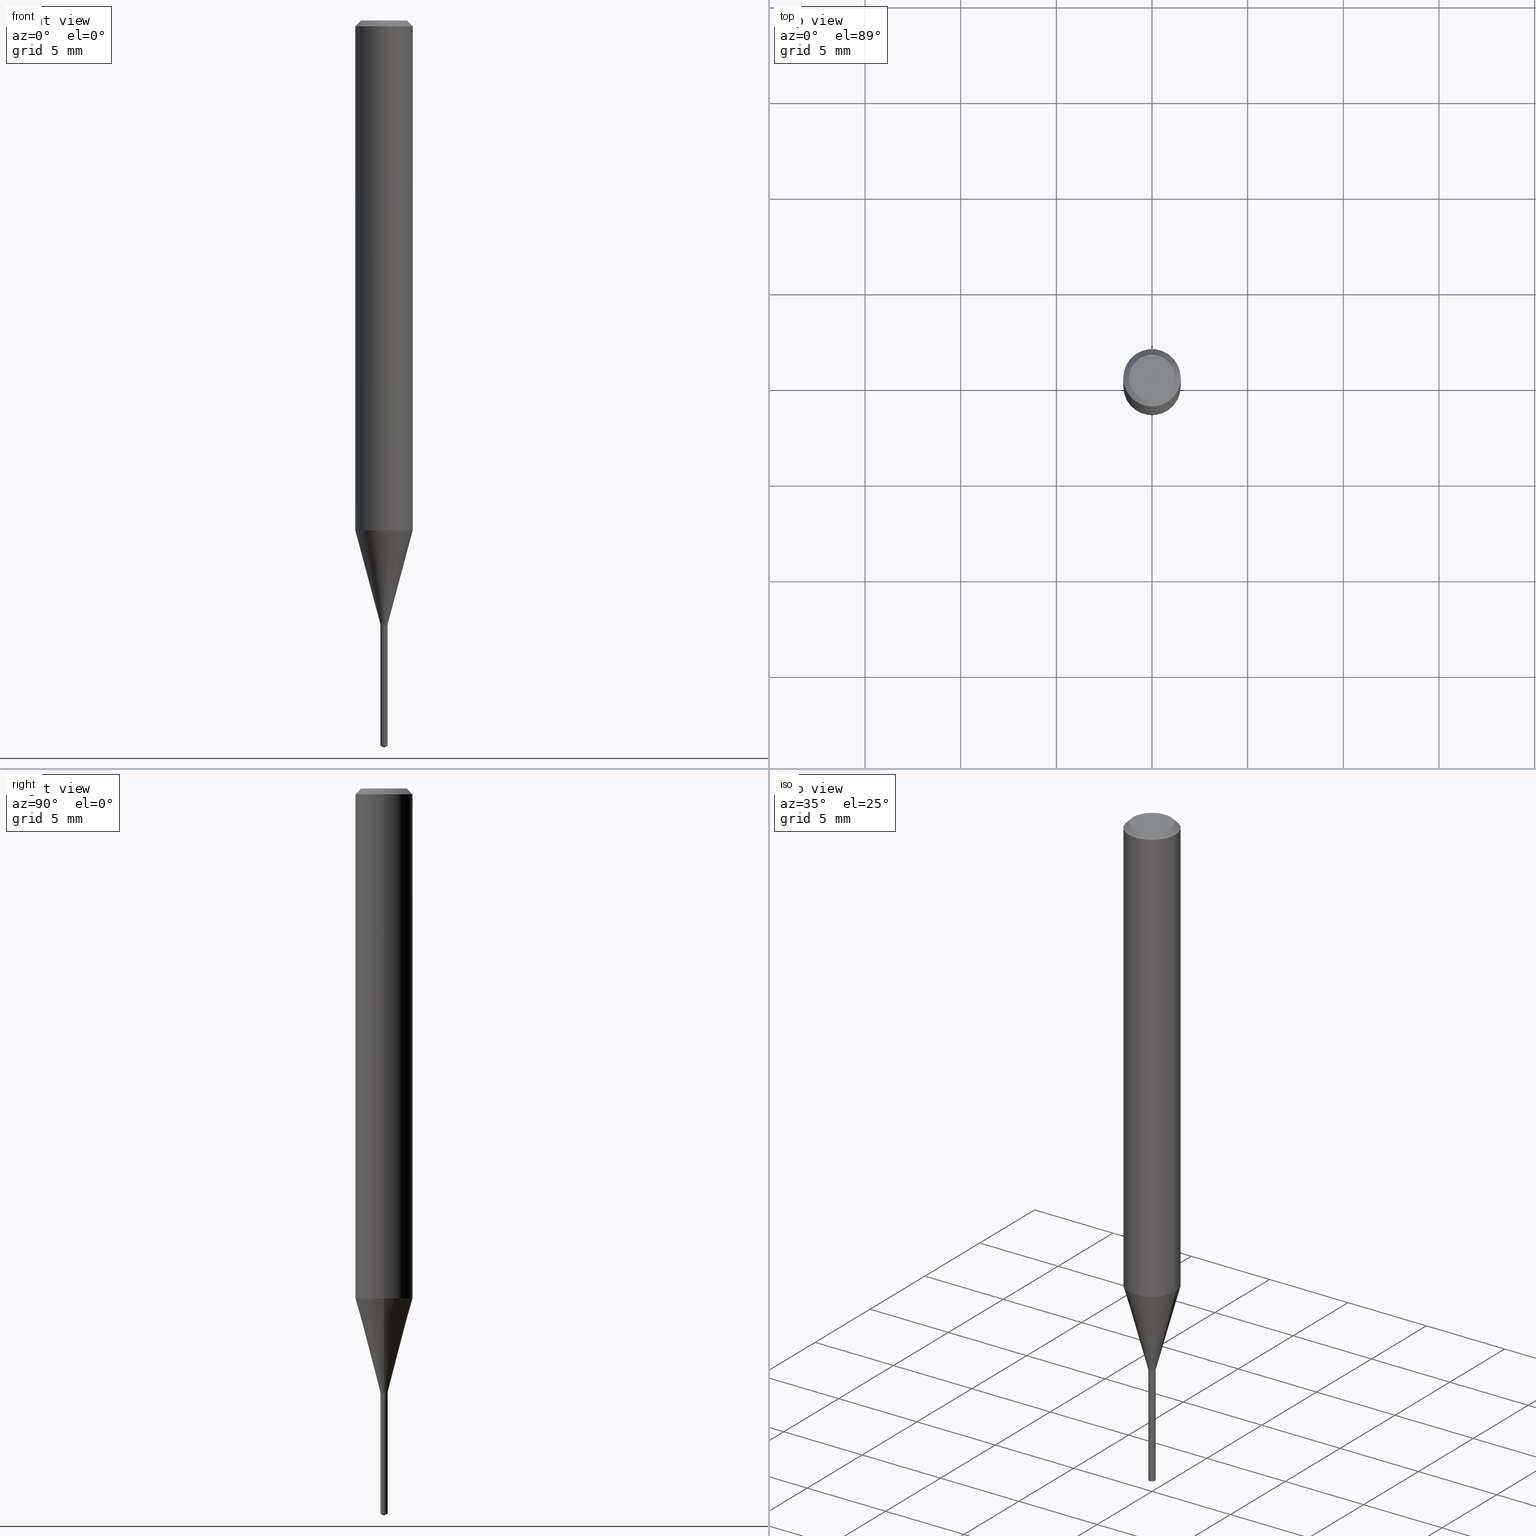
[diagram: canonical four-view strip — front | top / right | iso, engineering-drawing reading convention]
A machine part, canonical four-view strip (front | top / right | iso — engineering-drawing reading convention). The complete STEP part file that produces these views, byte-faithful:
ISO-10303-21;
HEADER;
FILE_DESCRIPTION (( 'STEP AP203' ),
    '1' );
FILE_NAME ('08262.STEP',
    '2024-04-24T13:59:29',
    ( '' ),
    ( '' ),
    'SwSTEP 2.0',
    'SolidWorks 2023',
    '' );
FILE_SCHEMA (( 'CONFIG_CONTROL_DESIGN' ));
ENDSEC;

DATA;
#1 = ORIENTED_EDGE ( 'NONE', *, *, #208, .F. ) ;
#2 = PRODUCT ( '08262', '08262', '', ( #271 ) ) ;
#3 = PERSON_AND_ORGANIZATION ( #377, #300 ) ;
#4 = DIRECTION ( 'NONE',  ( -6.982962677686265922E-15, -1.000000000000000000, 0.000000000000000000 ) ) ;
#5 = EDGE_CURVE ( 'NONE', #27, #399, #297, .T. ) ;
#6 = VECTOR ( 'NONE', #190, 39.37007874015748143 ) ;
#7 = FACE_OUTER_BOUND ( 'NONE', #485, .T. ) ;
#8 = EDGE_LOOP ( 'NONE', ( #393, #370, #74, #109 ) ) ;
#9 = ORIENTED_EDGE ( 'NONE', *, *, #227, .F. ) ;
#10 = VECTOR ( 'NONE', #112, 39.37007874015748854 ) ;
#11 = AXIS2_PLACEMENT_3D ( 'NONE', #403, #75, #29 ) ;
#12 = AXIS2_PLACEMENT_3D ( 'NONE', #416, #199, #120 ) ;
#13 = DIRECTION ( 'NONE',  ( 1.000000000000000000, -6.982962677686205968E-15, 0.000000000000000000 ) ) ;
#14 = PERSON_AND_ORGANIZATION ( #377, #300 ) ;
#15 = DIRECTION ( 'NONE',  ( -2.445468806185136877E-29, 3.491481338843145188E-15, 1.000000000000000000 ) ) ;
#16 = PERSON_AND_ORGANIZATION ( #377, #300 ) ;
#17 = FACE_OUTER_BOUND ( 'NONE', #183, .T. ) ;
#18 = VECTOR ( 'NONE', #239, 39.37007874015748854 ) ;
#19 = VECTOR ( 'NONE', #286, 39.37007874015748854 ) ;
#20 = CARTESIAN_POINT ( 'NONE',  ( -0.05904999999999999832, 3.711095515056362547E-16, -0.01181000000000007218 ) ) ;
#21 = AXIS2_PLACEMENT_3D ( 'NONE', #463, #228, #4 ) ;
#22 = EDGE_CURVE ( 'NONE', #312, #328, #224, .T. ) ;
#23 = CARTESIAN_POINT ( 'NONE',  ( 5.329070518204405225E-17, 0.007499999999995655975, -1.244099999999999984 ) ) ;
#24 = EDGE_LOOP ( 'NONE', ( #365, #136, #1, #324 ) ) ;
#25 = EDGE_CURVE ( 'NONE', #338, #178, #115, .T. ) ;
#26 = CARTESIAN_POINT ( 'NONE',  ( 3.041185007371835914E-29, -4.342006192985336437E-15, -1.243600000000000039 ) ) ;
#27 = VERTEX_POINT ( 'NONE', #152 ) ;
#28 = EDGE_CURVE ( 'NONE', #362, #47, #309, .T. ) ;
#29 = DIRECTION ( 'NONE',  ( 1.000000000000000000, -6.982962677686266711E-15, 4.876176775795935793E-29 ) ) ;
#30 = APPROVAL_PERSON_ORGANIZATION ( #279, #383, #129 ) ;
#31 = ORIENTED_EDGE ( 'NONE', *, *, #234, .T. ) ;
#32 = DIRECTION ( 'NONE',  ( -6.982962677686266711E-15, -1.000000000000000000, 3.520397390770520529E-15 ) ) ;
#33 = ORIENTED_EDGE ( 'NONE', *, *, #266, .T. ) ;
#34 = CARTESIAN_POINT ( 'NONE',  ( 3.042407741774928155E-29, -4.343751933654757151E-15, -1.244099999999999984 ) ) ;
#35 = CC_DESIGN_PERSON_AND_ORGANIZATION_ASSIGNMENT ( #282, #100, ( #164 ) ) ;
#36 = ORIENTED_EDGE ( 'NONE', *, *, #234, .F. ) ;
#37 = DIRECTION ( 'NONE',  ( -2.445468806185136597E-29, 3.491481338843145583E-15, 1.000000000000000000 ) ) ;
#38 = AXIS2_PLACEMENT_3D ( 'NONE', #296, #333, #106 ) ;
#39 = LOCAL_TIME ( 9, 59, 29.00000000000000000, #387 ) ;
#40 = ORIENTED_EDGE ( 'NONE', *, *, #237, .T. ) ;
#41 = DIRECTION ( 'NONE',  ( 1.000000000000000000, 0.000000000000000000, 0.000000000000000000 ) ) ;
#42 = DIRECTION ( 'NONE',  ( -2.445468806185136597E-29, 3.491481338843145583E-15, 1.000000000000000000 ) ) ;
#43 = APPROVAL ( #394, 'UNSPECIFIED' ) ;
#44 = DIRECTION ( 'NONE',  ( -2.442705339250343401E-29, 3.495438780780538501E-15, 1.000000000000000000 ) ) ;
#45 = AXIS2_PLACEMENT_3D ( 'NONE', #351, #57, #13 ) ;
#46 = CARTESIAN_POINT ( 'NONE',  ( 0.05904999999999999832, -4.535783407291118600E-16, -0.01181000000000007218 ) ) ;
#47 = VERTEX_POINT ( 'NONE', #454 ) ;
#48 = CARTESIAN_POINT ( 'NONE',  ( 3.042407741774928155E-29, -4.343751933654757151E-15, -1.244099999999999984 ) ) ;
#49 = DIRECTION ( 'NONE',  ( 0.7071067811866169617, -2.468850131082983996E-15, 0.7071067811864780728 ) ) ;
#50 = PRODUCT_DEFINITION ( 'UNKNOWN', '', #164, #450 ) ;
#51 = DATE_TIME_ROLE ( 'classification_date' ) ;
#52 = DIRECTION ( 'NONE',  ( 1.000000000000000000, -6.982962677686205968E-15, 0.000000000000000000 ) ) ;
#53 = AXIS2_PLACEMENT_3D ( 'NONE', #429, #475, #52 ) ;
#54 = CALENDAR_DATE ( 2024, 24, 4 ) ;
#55 = LINE ( 'NONE', #353, #119 ) ;
#56 = ADVANCED_FACE ( 'NONE', ( #221 ), #197, .T. ) ;
#57 = DIRECTION ( 'NONE',  ( -2.445468806185136597E-29, 3.491481338843145583E-15, 1.000000000000000000 ) ) ;
#58 = DIRECTION ( 'NONE',  ( -2.445468806185136597E-29, 3.491481338843145583E-15, 1.000000000000000000 ) ) ;
#59 = EDGE_LOOP ( 'NONE', ( #472, #287, #191, #185 ) ) ;
#60 = SHAPE_DEFINITION_REPRESENTATION ( #446, #369 ) ;
#61 = AXIS2_PLACEMENT_3D ( 'NONE', #215, #110, #220 ) ;
#62 = APPROVAL_PERSON_ORGANIZATION ( #424, #405, #431 ) ;
#63 = CARTESIAN_POINT ( 'NONE',  ( 0.000000000000000000, 0.000000000000000000, 0.000000000000000000 ) ) ;
#64 = EDGE_CURVE ( 'NONE', #47, #338, #123, .T. ) ;
#65 = EDGE_LOOP ( 'NONE', ( #417, #236, #161 ) ) ;
#66 = DIRECTION ( 'NONE',  ( -2.442705339250343401E-29, 3.495438780780538501E-15, 1.000000000000000000 ) ) ;
#67 = ADVANCED_FACE ( 'NONE', ( #169 ), #316, .T. ) ;
#68 = EDGE_LOOP ( 'NONE', ( #36, #421, #134, #144 ) ) ;
#69 = CARTESIAN_POINT ( 'NONE',  ( 0.05904999999999999832, -4.463468013801466955E-16, -0.01181000000000007218 ) ) ;
#70 = VERTEX_POINT ( 'NONE', #477 ) ;
#71 = CARTESIAN_POINT ( 'NONE',  ( 3.042407741774928155E-29, -4.343751933654757151E-15, -1.244099999999999984 ) ) ;
#72 = AXIS2_PLACEMENT_3D ( 'NONE', #251, #202, #138 ) ;
#73 = AXIS2_PLACEMENT_3D ( 'NONE', #415, #229, #122 ) ;
#74 = ORIENTED_EDGE ( 'NONE', *, *, #471, .F. ) ;
#75 = DIRECTION ( 'NONE',  ( -2.445468806185136597E-29, 3.491481338843145583E-15, 1.000000000000000000 ) ) ;
#76 = ORIENTED_EDGE ( 'NONE', *, *, #94, .F. ) ;
#77 = CARTESIAN_POINT ( 'NONE',  ( -5.237222008261050812E-17, -0.007500000000005214301, -1.492602692563837374 ) ) ;
#78 = EDGE_CURVE ( 'NONE', #312, #216, #177, .T. ) ;
#79 = ORIENTED_EDGE ( 'NONE', *, *, #386, .F. ) ;
#80 =( CONVERSION_BASED_UNIT ( 'INCH', #457 ) LENGTH_UNIT ( ) NAMED_UNIT ( #209 ) );
#81 = ADVANCED_FACE ( 'NONE', ( #207 ), #298, .T. ) ;
#82 = DIRECTION ( 'NONE',  ( 1.000000000000000000, -6.982962677686266711E-15, 4.876176775795935793E-29 ) ) ;
#83 = FACE_OUTER_BOUND ( 'NONE', #483, .T. ) ;
#84 = ORIENTED_EDGE ( 'NONE', *, *, #317, .F. ) ;
#85 = AXIS2_PLACEMENT_3D ( 'NONE', #126, #263, #276 ) ;
#86 = AXIS2_PLACEMENT_3D ( 'NONE', #391, #172, #389 ) ;
#87 = CC_DESIGN_SECURITY_CLASSIFICATION ( #440, ( #164 ) ) ;
#88 =( NAMED_UNIT ( * ) PLANE_ANGLE_UNIT ( ) SI_UNIT ( $, .RADIAN. ) );
#89 = ADVANCED_FACE ( 'NONE', ( #392 ), #291, .T. ) ;
#90 = DIRECTION ( 'NONE',  ( -2.445468806185136877E-29, 3.491481338843145188E-15, 1.000000000000000000 ) ) ;
#91 = EDGE_LOOP ( 'NONE', ( #180, #33, #105, #295 ) ) ;
#92 = APPROVAL_DATE_TIME ( #422, #405 ) ;
#93 = CARTESIAN_POINT ( 'NONE',  ( 0.05905000000000011628, -4.076349087267857001E-15, -1.049412780869824147 ) ) ;
#94 = EDGE_CURVE ( 'NONE', #284, #338, #447, .T. ) ;
#95 = CIRCLE ( 'NONE', #364, 0.007500000000000001457 ) ;
#96 = COORDINATED_UNIVERSAL_TIME_OFFSET ( 5, 0, .BEHIND. ) ;
#97 = DIRECTION ( 'NONE',  ( -2.445468806185136597E-29, 3.491481338843145583E-15, 1.000000000000000000 ) ) ;
#98 = FACE_OUTER_BOUND ( 'NONE', #247, .T. ) ;
#99 = ORIENTED_EDGE ( 'NONE', *, *, #198, .T. ) ;
#100 = PERSON_AND_ORGANIZATION_ROLE ( 'design_supplier' ) ;
#101 = CARTESIAN_POINT ( 'NONE',  ( 3.042407741774928155E-29, -4.343751933654757151E-15, -1.244099999999999984 ) ) ;
#102 = ORIENTED_EDGE ( 'NONE', *, *, #113, .T. ) ;
#103 = LOCAL_TIME ( 9, 59, 29.00000000000000000, #96 ) ;
#104 = DIRECTION ( 'NONE',  ( 1.000000000000000000, -6.982962677686333764E-15, 0.000000000000000000 ) ) ;
#105 = ORIENTED_EDGE ( 'NONE', *, *, #471, .T. ) ;
#106 = DIRECTION ( 'NONE',  ( 1.000000000000000000, -6.982962677686266711E-15, 4.876176775795935793E-29 ) ) ;
#107 = ORIENTED_EDGE ( 'NONE', *, *, #237, .F. ) ;
#108 = DIRECTION ( 'NONE',  ( -6.982962677686265922E-15, -1.000000000000000000, 0.000000000000000000 ) ) ;
#109 = ORIENTED_EDGE ( 'NONE', *, *, #214, .F. ) ;
#110 = DIRECTION ( 'NONE',  ( -2.445468806185136597E-29, 3.491481338843145583E-15, 1.000000000000000000 ) ) ;
#111 = VECTOR ( 'NONE', #66, 39.37007874015748143 ) ;
#112 = DIRECTION ( 'NONE',  ( 0.2588190451025212391, 1.565188264969622362E-15, 0.9659258262890679791 ) ) ;
#113 = EDGE_CURVE ( 'NONE', #338, #284, #479, .T. ) ;
#114 = DIRECTION ( 'NONE',  ( -2.442705339250343681E-29, 3.495438780780538895E-15, 1.000000000000000000 ) ) ;
#115 = LINE ( 'NONE', #410, #10 ) ;
#116 = FACE_OUTER_BOUND ( 'NONE', #146, .T. ) ;
#117 = EDGE_CURVE ( 'NONE', #216, #480, #311, .T. ) ;
#118 = CARTESIAN_POINT ( 'NONE',  ( 0.000000000000000000, 0.000000000000000000, 0.000000000000000000 ) ) ;
#119 = VECTOR ( 'NONE', #15, 39.37007874015748143 ) ;
#120 = DIRECTION ( 'NONE',  ( -1.000000000000000000, 6.982962677686265922E-15, -4.876176775795935793E-29 ) ) ;
#121 = DIRECTION ( 'NONE',  ( -6.982962677686265922E-15, -1.000000000000000000, 0.000000000000000000 ) ) ;
#122 = DIRECTION ( 'NONE',  ( 1.000000000000000000, -6.982962677686266711E-15, 0.000000000000000000 ) ) ;
#123 = LINE ( 'NONE', #269, #155 ) ;
#124 = CONICAL_SURFACE ( 'NONE', #45, 0.007499999999999997120, 0.2617993877991499629 ) ;
#125 = DATE_TIME_ROLE ( 'creation_date' ) ;
#126 = CARTESIAN_POINT ( 'NONE',  ( 8.265746106709734507E-48, -1.180129479067563789E-33, -3.380025165646692144E-19 ) ) ;
#127 = LINE ( 'NONE', #425, #18 ) ;
#128 = ADVANCED_FACE ( 'NONE', ( #469 ), #210, .T. ) ;
#129 = APPROVAL_ROLE ( '' ) ;
#130 = LINE ( 'NONE', #280, #111 ) ;
#131 = CC_DESIGN_PERSON_AND_ORGANIZATION_ASSIGNMENT ( #3, #264, ( #2 ) ) ;
#132 = AXIS2_PLACEMENT_3D ( 'NONE', #379, #42, #82 ) ;
#133 = DIRECTION ( 'NONE',  ( -6.982962677686265922E-15, -1.000000000000000000, 0.000000000000000000 ) ) ;
#134 = ORIENTED_EDGE ( 'NONE', *, *, #25, .T. ) ;
#135 = CARTESIAN_POINT ( 'NONE',  ( 3.661467811395460725E-29, -5.219679052897141195E-15, -1.496099999999999985 ) ) ;
#136 = ORIENTED_EDGE ( 'NONE', *, *, #409, .T. ) ;
#137 = ADVANCED_FACE ( 'NONE', ( #98 ), #124, .T. ) ;
#138 = DIRECTION ( 'NONE',  ( -1.000000000000000000, 6.982962677686266711E-15, 0.000000000000000000 ) ) ;
#139 = ORIENTED_EDGE ( 'NONE', *, *, #198, .F. ) ;
#140 = CIRCLE ( 'NONE', #345, 0.007499999999999999722 ) ;
#141 = CARTESIAN_POINT ( 'NONE',  ( 2.888098660104664204E-31, -4.123439461173780263E-17, -0.01181000000000007218 ) ) ;
#142 = ORIENTED_EDGE ( 'NONE', *, *, #248, .F. ) ;
#143 = DIRECTION ( 'NONE',  ( -2.445468806185136597E-29, 3.491481338843145583E-15, 1.000000000000000000 ) ) ;
#144 = ORIENTED_EDGE ( 'NONE', *, *, #390, .F. ) ;
#145 = PLANE ( 'NONE',  #203 ) ;
#146 = EDGE_LOOP ( 'NONE', ( #385, #40, #348, #250 ) ) ;
#147 = CONICAL_SURFACE ( 'NONE', #350, 84.42940631927274353, 1.134464013796308679 ) ;
#148 = CARTESIAN_POINT ( 'NONE',  ( 2.566306220429153348E-29, -3.664005141150482080E-15, -1.049412780869824147 ) ) ;
#149 = CIRCLE ( 'NONE', #299, 0.05905000000000011628 ) ;
#150 = EDGE_LOOP ( 'NONE', ( #158, #213, #464, #335 ) ) ;
#151 = FACE_OUTER_BOUND ( 'NONE', #91, .T. ) ;
#152 = CARTESIAN_POINT ( 'NONE',  ( 3.654531458052439160E-29, -5.229525959925763787E-15, -1.496099999999999985 ) ) ;
#153 = CARTESIAN_POINT ( 'NONE',  ( 5.329070518204401527E-17, 0.007499999999994790348, -1.492602692563837374 ) ) ;
#154 = PLANE ( 'NONE',  #430 ) ;
#155 = VECTOR ( 'NONE', #90, 39.37007874015748143 ) ;
#156 = DIRECTION ( 'NONE',  ( -2.442705339250343681E-29, 3.495438780780538895E-15, 1.000000000000000000 ) ) ;
#157 = CARTESIAN_POINT ( 'NONE',  ( 5.329070518203793242E-17, 0.007499999999995656842, -1.244099999999999984 ) ) ;
#158 = ORIENTED_EDGE ( 'NONE', *, *, #409, .F. ) ;
#159 = CC_DESIGN_PERSON_AND_ORGANIZATION_ASSIGNMENT ( #14, #245, ( #50 ) ) ;
#160 =( LENGTH_UNIT ( ) NAMED_UNIT ( * ) SI_UNIT ( $, .METRE. ) );
#161 = ORIENTED_EDGE ( 'NONE', *, *, #402, .F. ) ;
#162 = CLOSED_SHELL ( 'NONE', ( #56, #307, #187, #462, #372 ) ) ;
#163 = CONICAL_SURFACE ( 'NONE', #439, 0.007499999999999997120, 0.2617993877991499629 ) ;
#164 = PRODUCT_DEFINITION_FORMATION_WITH_SPECIFIED_SOURCE ( 'ANY', '', #2, .NOT_KNOWN. ) ;
#165 = DIRECTION ( 'NONE',  ( -6.982962677686266711E-15, -1.000000000000000000, 3.520397390770520529E-15 ) ) ;
#166 = CALENDAR_DATE ( 2024, 24, 4 ) ;
#167 = CC_DESIGN_PERSON_AND_ORGANIZATION_ASSIGNMENT ( #16, #315, ( #164 ) ) ;
#168 = DIRECTION ( 'NONE',  ( 1.000000000000000000, -6.982962677686266711E-15, 4.876176775795935793E-29 ) ) ;
#169 = FACE_OUTER_BOUND ( 'NONE', #8, .T. ) ;
#170 = VECTOR ( 'NONE', #289, 39.37007874015748143 ) ;
#171 = APPROVAL_DATE_TIME ( #465, #43 ) ;
#172 = DIRECTION ( 'NONE',  ( -2.445468806185136597E-29, 3.491481338843145583E-15, 1.000000000000000000 ) ) ;
#173 = MANIFOLD_SOLID_BREP ( 'Body-Move/Copy2[1]', #162 ) ;
#174 = PRODUCT_RELATED_PRODUCT_CATEGORY ( 'detail', '', ( #2 ) ) ;
#175 = EDGE_LOOP ( 'NONE', ( #441, #407 ) ) ;
#176 = SECURITY_CLASSIFICATION_LEVEL ( 'unclassified' ) ;
#177 = LINE ( 'NONE', #20, #170 ) ;
#178 = VERTEX_POINT ( 'NONE', #93 ) ;
#179 = DIRECTION ( 'NONE',  ( -2.442705339250343681E-29, 3.495438780780538895E-15, 1.000000000000000000 ) ) ;
#180 = ORIENTED_EDGE ( 'NONE', *, *, #270, .F. ) ;
#181 =( GEOMETRIC_REPRESENTATION_CONTEXT ( 3 ) GLOBAL_UNCERTAINTY_ASSIGNED_CONTEXT ( ( #474 ) ) GLOBAL_UNIT_ASSIGNED_CONTEXT ( ( #80, #88, #376 ) ) REPRESENTATION_CONTEXT ( 'NONE', 'WORKASPACE' ) );
#182 = CARTESIAN_POINT ( 'NONE',  ( -0.007499999999999997120, -4.285573154598369775E-15, -1.243600000000000039 ) ) ;
#183 = EDGE_LOOP ( 'NONE', ( #423, #401, #84 ) ) ;
#184 = CARTESIAN_POINT ( 'NONE',  ( 3.036783163520702277E-29, -4.335721526575417446E-15, -1.241799999999999793 ) ) ;
#185 = ORIENTED_EDGE ( 'NONE', *, *, #117, .T. ) ;
#186 = DIRECTION ( 'NONE',  ( -2.445468806185136597E-29, 3.491481338843145583E-15, 1.000000000000000000 ) ) ;
#187 = ADVANCED_FACE ( 'NONE', ( #17 ), #257, .T. ) ;
#188 = ORIENTED_EDGE ( 'NONE', *, *, #476, .F. ) ;
#189 = AXIS2_PLACEMENT_3D ( 'NONE', #141, #451, #398 ) ;
#190 = DIRECTION ( 'NONE',  ( -2.445468806185136877E-29, 3.491481338843145188E-15, 1.000000000000000000 ) ) ;
#191 = ORIENTED_EDGE ( 'NONE', *, *, #78, .T. ) ;
#192 = EDGE_CURVE ( 'NONE', #27, #452, #323, .T. ) ;
#193 = CARTESIAN_POINT ( 'NONE',  ( -0.006999999999999999278, -4.291364714977439682E-15, -1.244099999999999984 ) ) ;
#194 = DIRECTION ( 'NONE',  ( 1.000000000000000000, -6.982962677686265922E-15, 4.876176775795935793E-29 ) ) ;
#195 = DIRECTION ( 'NONE',  ( -6.982962677686265922E-15, -1.000000000000000000, 0.000000000000000000 ) ) ;
#196 = DIRECTION ( 'NONE',  ( -0.7071067811866169617, 7.493145998870605018E-15, 0.7071067811864780728 ) ) ;
#197 = CYLINDRICAL_SURFACE ( 'NONE', #240, 0.007500000000000001457 ) ;
#198 = EDGE_CURVE ( 'NONE', #233, #70, #241, .T. ) ;
#199 = DIRECTION ( 'NONE',  ( 2.438088387897960049E-29, -3.491481338843145188E-15, -1.000000000000000000 ) ) ;
#200 = CARTESIAN_POINT ( 'NONE',  ( 3.042407741774928155E-29, -4.343751933654757151E-15, -1.244099999999999984 ) ) ;
#201 = DATE_AND_TIME ( #434, #273 ) ;
#202 = DIRECTION ( 'NONE',  ( 2.445468806185136597E-29, -3.491481338843145583E-15, -1.000000000000000000 ) ) ;
#203 = AXIS2_PLACEMENT_3D ( 'NONE', #71, #445, #371 ) ;
#204 = APPROVAL_ROLE ( '' ) ;
#205 = DIRECTION ( 'NONE',  ( 1.000000000000000000, -6.982962677686205968E-15, 0.000000000000000000 ) ) ;
#206 = LINE ( 'NONE', #283, #339 ) ;
#207 = FACE_OUTER_BOUND ( 'NONE', #24, .T. ) ;
#208 = EDGE_CURVE ( 'NONE', #47, #359, #404, .T. ) ;
#209 = DIMENSIONAL_EXPONENTS ( 1.000000000000000000, 0.000000000000000000, 0.000000000000000000, 0.000000000000000000, 0.000000000000000000, 0.000000000000000000, 0.000000000000000000 ) ;
#210 = CONICAL_SURFACE ( 'NONE', #86, 0.006999999999999999278, 0.7853981633975465337 ) ;
#211 = CARTESIAN_POINT ( 'NONE',  ( 2.888098660104664204E-31, -4.123439461173780263E-17, -0.01181000000000007218 ) ) ;
#212 = DIRECTION ( 'NONE',  ( 1.000000000000000000, -6.982962677686270655E-15, 0.000000000000000000 ) ) ;
#213 = ORIENTED_EDGE ( 'NONE', *, *, #227, .T. ) ;
#214 = EDGE_CURVE ( 'NONE', #178, #480, #206, .T. ) ;
#215 = CARTESIAN_POINT ( 'NONE',  ( 8.265746106709734507E-48, -1.180129479067563789E-33, -3.380025165646692144E-19 ) ) ;
#216 = VERTEX_POINT ( 'NONE', #314 ) ;
#217 = CLOSED_SHELL ( 'NONE', ( #81, #275, #67, #137, #337, #419, #343, #358, #89, #411, #459, #128 ) ) ;
#218 = CIRCLE ( 'NONE', #306, 0.007499999999999997120 ) ;
#219 = CARTESIAN_POINT ( 'NONE',  ( -0.007499999999999997120, -4.285573154598369775E-15, -1.241799999999999793 ) ) ;
#220 = DIRECTION ( 'NONE',  ( 1.000000000000000000, -6.982962677686266711E-15, 4.876185090822587894E-29 ) ) ;
#221 = FACE_OUTER_BOUND ( 'NONE', #272, .T. ) ;
#222 = CARTESIAN_POINT ( 'NONE',  ( 3.649426595718700826E-29, -5.212377882370777970E-15, -1.492602692563837374 ) ) ;
#223 = ORIENTED_EDGE ( 'NONE', *, *, #25, .F. ) ;
#224 = CIRCLE ( 'NONE', #85, 0.04724000000000000421 ) ;
#225 = CIRCLE ( 'NONE', #412, 0.05905000000000011628 ) ;
#226 = APPLICATION_PROTOCOL_DEFINITION ( 'international standard', 'config_control_design', 1994, #235 ) ;
#227 = EDGE_CURVE ( 'NONE', #436, #362, #321, .T. ) ;
#228 = DIRECTION ( 'NONE',  ( -2.442705339250343681E-29, 3.495438780780538895E-15, 1.000000000000000000 ) ) ;
#229 = DIRECTION ( 'NONE',  ( -2.445468806185136597E-29, 3.491481338843145583E-15, 1.000000000000000000 ) ) ;
#230 = AXIS2_PLACEMENT_3D ( 'NONE', #101, #432, #246 ) ;
#231 = ORIENTED_EDGE ( 'NONE', *, *, #334, .F. ) ;
#232 = AXIS2_PLACEMENT_3D ( 'NONE', #34, #186, #336 ) ;
#233 = VERTEX_POINT ( 'NONE', #23 ) ;
#234 = EDGE_CURVE ( 'NONE', #284, #252, #127, .T. ) ;
#235 = APPLICATION_CONTEXT ( 'configuration controlled 3d designs of mechanical parts and assemblies' ) ;
#236 = ORIENTED_EDGE ( 'NONE', *, *, #192, .T. ) ;
#237 = EDGE_CURVE ( 'NONE', #359, #284, #55, .T. ) ;
#238 = APPROVAL_DATE_TIME ( #201, #383 ) ;
#239 = DIRECTION ( 'NONE',  ( -0.2588190451025212391, 5.211531920934549464E-15, 0.9659258262890679791 ) ) ;
#240 = AXIS2_PLACEMENT_3D ( 'NONE', #200, #460, #121 ) ;
#241 = CIRCLE ( 'NONE', #357, 0.007499999999999999722 ) ;
#242 = APPROVAL_PERSON_ORGANIZATION ( #384, #43, #204 ) ;
#243 = PERSON_AND_ORGANIZATION_ROLE ( 'classification_officer' ) ;
#244 = DIRECTION ( 'NONE',  ( -2.445468806185136597E-29, 3.491481338843145583E-15, 1.000000000000000000 ) ) ;
#245 = PERSON_AND_ORGANIZATION_ROLE ( 'creator' ) ;
#246 = DIRECTION ( 'NONE',  ( 1.000000000000000000, -6.982962677686333764E-15, 0.000000000000000000 ) ) ;
#247 = EDGE_LOOP ( 'NONE', ( #102, #31, #331, #223 ) ) ;
#248 = EDGE_CURVE ( 'NONE', #399, #70, #130, .T. ) ;
#249 = CARTESIAN_POINT ( 'NONE',  ( 3.042407741774928155E-29, -4.343751933654757151E-15, -1.244099999999999984 ) ) ;
#250 = ORIENTED_EDGE ( 'NONE', *, *, #64, .F. ) ;
#251 = CARTESIAN_POINT ( 'NONE',  ( 2.888098660104664204E-31, -4.123439461173780263E-17, -0.01181000000000007218 ) ) ;
#252 = VERTEX_POINT ( 'NONE', #490 ) ;
#253 = FACE_OUTER_BOUND ( 'NONE', #68, .T. ) ;
#254 = ORIENTED_EDGE ( 'NONE', *, *, #402, .T. ) ;
#255 = DIRECTION ( 'NONE',  ( -2.445468806185136597E-29, 3.491481338843145583E-15, 1.000000000000000000 ) ) ;
#256 = EDGE_LOOP ( 'NONE', ( #188, #349, #322, #139 ) ) ;
#257 = CONICAL_SURFACE ( 'NONE', #396, 84.42940631927274353, 1.134464013796308679 ) ;
#258 = CC_DESIGN_APPROVAL ( #43, ( #50 ) ) ;
#259 = LINE ( 'NONE', #69, #378 ) ;
#260 = CARTESIAN_POINT ( 'NONE',  ( 0.006999999999999999278, -4.392632672398561618E-15, -1.244099999999999984 ) ) ;
#261 = CC_DESIGN_DATE_AND_TIME_ASSIGNMENT ( #277, #125, ( #50 ) ) ;
#262 = DIRECTION ( 'NONE',  ( 1.000000000000000000, -6.982962677686266711E-15, 0.000000000000000000 ) ) ;
#263 = DIRECTION ( 'NONE',  ( -2.445468806185136597E-29, 3.491481338843145583E-15, 1.000000000000000000 ) ) ;
#264 = PERSON_AND_ORGANIZATION_ROLE ( 'design_owner' ) ;
#265 = VECTOR ( 'NONE', #44, 39.37007874015748143 ) ;
#266 = EDGE_CURVE ( 'NONE', #328, #480, #259, .T. ) ;
#267 = FACE_OUTER_BOUND ( 'NONE', #256, .T. ) ;
#268 = LINE ( 'NONE', #381, #470 ) ;
#269 = CARTESIAN_POINT ( 'NONE',  ( 0.007499999999999997120, -5.237222008264698061E-17, 3.657132581846950443E-31 ) ) ;
#270 = EDGE_CURVE ( 'NONE', #328, #312, #388, .T. ) ;
#271 = MECHANICAL_CONTEXT ( 'NONE', #313, 'mechanical' ) ;
#272 = EDGE_LOOP ( 'NONE', ( #254, #397, #231, #142 ) ) ;
#273 = LOCAL_TIME ( 9, 59, 29.00000000000000000, #326 ) ;
#274 = PERSON_AND_ORGANIZATION ( #377, #300 ) ;
#275 = ADVANCED_FACE ( 'NONE', ( #151 ), #487, .T. ) ;
#276 = DIRECTION ( 'NONE',  ( 1.000000000000000000, -6.982962677686266711E-15, 4.876185090822587894E-29 ) ) ;
#277 = DATE_AND_TIME ( #166, #347 ) ;
#278 = CARTESIAN_POINT ( 'NONE',  ( 3.041185007371835914E-29, -4.342006192985336437E-15, -1.243600000000000039 ) ) ;
#279 = PERSON_AND_ORGANIZATION ( #377, #300 ) ;
#280 = CARTESIAN_POINT ( 'NONE',  ( -5.237222008261658481E-17, -0.007500000000004345205, -1.244099999999999984 ) ) ;
#281 = AXIS2_PLACEMENT_3D ( 'NONE', #222, #156, #195 ) ;
#282 = PERSON_AND_ORGANIZATION ( #377, #300 ) ;
#283 = CARTESIAN_POINT ( 'NONE',  ( 0.05905000000000006077, -4.123439461173744764E-16, 2.879382386107503023E-30 ) ) ;
#284 = VERTEX_POINT ( 'NONE', #219 ) ;
#285 = COORDINATED_UNIVERSAL_TIME_OFFSET ( 5, 0, .BEHIND. ) ;
#286 = DIRECTION ( 'NONE',  ( 6.439704144417008265E-15, 0.9063077870366490485, 0.4226182617407012732 ) ) ;
#287 = ORIENTED_EDGE ( 'NONE', *, *, #22, .F. ) ;
#288 = EDGE_CURVE ( 'NONE', #359, #47, #218, .T. ) ;
#289 = DIRECTION ( 'NONE',  ( -0.7071067811865453523, 2.468850131082234184E-15, -0.7071067811865496822 ) ) ;
#290 = VECTOR ( 'NONE', #49, 39.37007874015748143 ) ;
#291 = CONICAL_SURFACE ( 'NONE', #72, 0.05904999999999999832, 0.7853981633974452814 ) ;
#292 = CARTESIAN_POINT ( 'NONE',  ( 3.042407741774928155E-29, -4.343751933654757151E-15, -1.244099999999999984 ) ) ;
#293 = ORIENTED_EDGE ( 'NONE', *, *, #214, .T. ) ;
#294 = FACE_OUTER_BOUND ( 'NONE', #302, .T. ) ;
#295 = ORIENTED_EDGE ( 'NONE', *, *, #78, .F. ) ;
#296 = CARTESIAN_POINT ( 'NONE',  ( 0.000000000000000000, 0.000000000000000000, 0.000000000000000000 ) ) ;
#297 = LINE ( 'NONE', #375, #437 ) ;
#298 = CONICAL_SURFACE ( 'NONE', #461, 0.006999999999999999278, 0.7853981633975465337 ) ;
#299 = AXIS2_PLACEMENT_3D ( 'NONE', #148, #301, #262 ) ;
#300 = ORGANIZATION ( 'UNSPECIFIED', 'UNSPECIFIED', '' ) ;
#301 = DIRECTION ( 'NONE',  ( -2.445468806185136597E-29, 3.491481338843145583E-15, 1.000000000000000000 ) ) ;
#302 = EDGE_LOOP ( 'NONE', ( #342, #99 ) ) ;
#303 = FACE_OUTER_BOUND ( 'NONE', #382, .T. ) ;
#304 = ORIENTED_EDGE ( 'NONE', *, *, #64, .T. ) ;
#305 = CYLINDRICAL_SURFACE ( 'NONE', #21, 0.007500000000000001457 ) ;
#306 = AXIS2_PLACEMENT_3D ( 'NONE', #26, #37, #212 ) ;
#307 = ADVANCED_FACE ( 'NONE', ( #332 ), #147, .T. ) ;
#308 = DIRECTION ( 'NONE',  ( 0.000000000000000000, 0.000000000000000000, 1.000000000000000000 ) ) ;
#309 = LINE ( 'NONE', #260, #290 ) ;
#310 = CYLINDRICAL_SURFACE ( 'NONE', #132, 0.007499999999999997120 ) ;
#311 = CIRCLE ( 'NONE', #418, 0.05904999999999999832 ) ;
#312 = VERTEX_POINT ( 'NONE', #443 ) ;
#313 = APPLICATION_CONTEXT ( 'configuration controlled 3d designs of mechanical parts and assemblies' ) ;
#314 = CARTESIAN_POINT ( 'NONE',  ( -0.05904999999999999832, -1.433044282414769623E-15, -0.01181000000000007218 ) ) ;
#315 = PERSON_AND_ORGANIZATION_ROLE ( 'creator' ) ;
#316 = CYLINDRICAL_SURFACE ( 'NONE', #427, 0.05905000000000006077 ) ;
#317 = EDGE_CURVE ( 'NONE', #452, #399, #95, .T. ) ;
#318 = APPROVAL_STATUS ( 'not_yet_approved' ) ;
#319 = MANIFOLD_SOLID_BREP ( 'Body-Move/Copy2[2]', #217 ) ;
#320 = DIRECTION ( 'NONE',  ( -2.445468806185136877E-29, 3.491481338843145188E-15, 1.000000000000000000 ) ) ;
#321 = CIRCLE ( 'NONE', #230, 0.006999999999999999278 ) ;
#322 = ORIENTED_EDGE ( 'NONE', *, *, #248, .T. ) ;
#323 = LINE ( 'NONE', #135, #19 ) ;
#324 = ORIENTED_EDGE ( 'NONE', *, *, #28, .F. ) ;
#325 = EDGE_CURVE ( 'NONE', #252, #216, #361, .T. ) ;
#326 = COORDINATED_UNIVERSAL_TIME_OFFSET ( 5, 0, .BEHIND. ) ;
#327 = CARTESIAN_POINT ( 'NONE',  ( 3.036783163520702277E-29, -4.335721526575417446E-15, -1.241799999999999793 ) ) ;
#328 = VERTEX_POINT ( 'NONE', #478 ) ;
#329 = CARTESIAN_POINT ( 'NONE',  ( -0.05905000000000006077, 4.195754854663395916E-16, -2.904631170795524694E-30 ) ) ;
#330 = CIRCLE ( 'NONE', #232, 0.006999999999999999278 ) ;
#331 = ORIENTED_EDGE ( 'NONE', *, *, #367, .F. ) ;
#332 = FACE_OUTER_BOUND ( 'NONE', #65, .T. ) ;
#333 = DIRECTION ( 'NONE',  ( -2.445468806185136597E-29, 3.491481338843145583E-15, 1.000000000000000000 ) ) ;
#334 = EDGE_CURVE ( 'NONE', #70, #233, #140, .T. ) ;
#335 = ORIENTED_EDGE ( 'NONE', *, *, #288, .F. ) ;
#336 = DIRECTION ( 'NONE',  ( 1.000000000000000000, -6.982962677686333764E-15, 0.000000000000000000 ) ) ;
#337 = ADVANCED_FACE ( 'NONE', ( #116 ), #368, .T. ) ;
#338 = VERTEX_POINT ( 'NONE', #484 ) ;
#339 = VECTOR ( 'NONE', #320, 39.37007874015748143 ) ;
#340 = CC_DESIGN_APPROVAL ( #405, ( #440 ) ) ;
#341 = DIRECTION ( 'NONE',  ( -6.982962677686265922E-15, -1.000000000000000000, 0.000000000000000000 ) ) ;
#342 = ORIENTED_EDGE ( 'NONE', *, *, #334, .T. ) ;
#343 = ADVANCED_FACE ( 'NONE', ( #253 ), #163, .T. ) ;
#344 = LINE ( 'NONE', #157, #265 ) ;
#345 = AXIS2_PLACEMENT_3D ( 'NONE', #292, #442, #108 ) ;
#346 = APPLICATION_PROTOCOL_DEFINITION ( 'international standard', 'config_control_design', 1994, #313 ) ;
#347 = LOCAL_TIME ( 9, 59, 29.00000000000000000, #352 ) ;
#348 = ORIENTED_EDGE ( 'NONE', *, *, #113, .F. ) ;
#349 = ORIENTED_EDGE ( 'NONE', *, *, #317, .T. ) ;
#350 = AXIS2_PLACEMENT_3D ( 'NONE', #374, #114, #32 ) ;
#351 = CARTESIAN_POINT ( 'NONE',  ( 3.036783163520702277E-29, -4.335721526575417446E-15, -1.241799999999999793 ) ) ;
#352 = COORDINATED_UNIVERSAL_TIME_OFFSET ( 5, 0, .BEHIND. ) ;
#353 = CARTESIAN_POINT ( 'NONE',  ( -0.007499999999999997120, 5.329070518200749348E-17, -3.689201317691177953E-31 ) ) ;
#354 = DIRECTION ( 'NONE',  ( -2.445468806185136597E-29, 3.491481338843145583E-15, 1.000000000000000000 ) ) ;
#355 = CALENDAR_DATE ( 2024, 24, 4 ) ;
#356 = DIRECTION ( 'NONE',  ( -2.442705339250343681E-29, 3.495438780780538895E-15, 1.000000000000000000 ) ) ;
#357 = AXIS2_PLACEMENT_3D ( 'NONE', #249, #435, #133 ) ;
#358 = ADVANCED_FACE ( 'NONE', ( #303 ), #363, .T. ) ;
#359 = VERTEX_POINT ( 'NONE', #182 ) ;
#360 = CARTESIAN_POINT ( 'NONE',  ( -9.251153205802309711E-28, 1.323910975243184100E-13, 37.87397874015748300 ) ) ;
#361 = LINE ( 'NONE', #329, #6 ) ;
#362 = VERTEX_POINT ( 'NONE', #481 ) ;
#363 = CYLINDRICAL_SURFACE ( 'NONE', #11, 0.05905000000000006077 ) ;
#364 = AXIS2_PLACEMENT_3D ( 'NONE', #406, #179, #341 ) ;
#365 = ORIENTED_EDGE ( 'NONE', *, *, #386, .T. ) ;
#366 = AXIS2_PLACEMENT_3D ( 'NONE', #118, #308, #41 ) ;
#367 = EDGE_CURVE ( 'NONE', #178, #252, #225, .T. ) ;
#368 = CYLINDRICAL_SURFACE ( 'NONE', #38, 0.007499999999999997120 ) ;
#369 = ADVANCED_BREP_SHAPE_REPRESENTATION ( '08262', ( #173, #319, #366 ), #181 ) ;
#370 = ORIENTED_EDGE ( 'NONE', *, *, #325, .T. ) ;
#371 = DIRECTION ( 'NONE',  ( 6.982962677686265922E-15, 1.000000000000000000, -3.495438780780538501E-15 ) ) ;
#372 = ADVANCED_FACE ( 'NONE', ( #294 ), #145, .F. ) ;
#373 = DIRECTION ( 'NONE',  ( -6.328713451373353601E-15, -0.9063077870366461619, 0.4226182617407076014 ) ) ;
#374 = CARTESIAN_POINT ( 'NONE',  ( -9.251153205802309711E-28, 1.323910975243184100E-13, 37.87397874015748300 ) ) ;
#375 = CARTESIAN_POINT ( 'NONE',  ( 3.654531458052439160E-29, -5.229525959925762998E-15, -1.496099999999999985 ) ) ;
#376 =( NAMED_UNIT ( * ) SI_UNIT ( $, .STERADIAN. ) SOLID_ANGLE_UNIT ( ) );
#377 = PERSON ( 'UNSPECIFIED', 'UNSPECIFIED', 'UNSPECIFIED', ('UNSPECIFIED'), ('UNSPECIFIED'), ('UNSPECIFIED') ) ;
#378 = VECTOR ( 'NONE', #408, 39.37007874015748143 ) ;
#379 = CARTESIAN_POINT ( 'NONE',  ( 0.000000000000000000, 0.000000000000000000, 0.000000000000000000 ) ) ;
#380 = ORIENTED_EDGE ( 'NONE', *, *, #325, .F. ) ;
#381 = CARTESIAN_POINT ( 'NONE',  ( -0.006999999999999999278, -4.294013942151550094E-15, -1.244099999999999984 ) ) ;
#382 = EDGE_LOOP ( 'NONE', ( #380, #444, #293, #448 ) ) ;
#383 = APPROVAL ( #473, 'UNSPECIFIED' ) ;
#384 = PERSON_AND_ORGANIZATION ( #377, #300 ) ;
#385 = ORIENTED_EDGE ( 'NONE', *, *, #208, .T. ) ;
#386 = EDGE_CURVE ( 'NONE', #362, #436, #330, .T. ) ;
#387 = COORDINATED_UNIVERSAL_TIME_OFFSET ( 5, 0, .BEHIND. ) ;
#388 = CIRCLE ( 'NONE', #61, 0.04724000000000000421 ) ;
#389 = DIRECTION ( 'NONE',  ( 1.000000000000000000, -6.982962677686333764E-15, 0.000000000000000000 ) ) ;
#390 = EDGE_CURVE ( 'NONE', #252, #178, #149, .T. ) ;
#391 = CARTESIAN_POINT ( 'NONE',  ( 3.042407741774928155E-29, -4.343751933654757151E-15, -1.244099999999999984 ) ) ;
#392 = FACE_OUTER_BOUND ( 'NONE', #59, .T. ) ;
#393 = ORIENTED_EDGE ( 'NONE', *, *, #367, .T. ) ;
#394 = APPROVAL_STATUS ( 'not_yet_approved' ) ;
#395 = DIRECTION ( 'NONE',  ( 1.000000000000000000, -6.982962677686270655E-15, 0.000000000000000000 ) ) ;
#396 = AXIS2_PLACEMENT_3D ( 'NONE', #360, #356, #165 ) ;
#397 = ORIENTED_EDGE ( 'NONE', *, *, #476, .T. ) ;
#398 = DIRECTION ( 'NONE',  ( -1.000000000000000000, 6.982962677686266711E-15, 0.000000000000000000 ) ) ;
#399 = VERTEX_POINT ( 'NONE', #77 ) ;
#400 = DIRECTION ( 'NONE',  ( 1.000000000000000000, -6.982962677686205968E-15, 0.000000000000000000 ) ) ;
#401 = ORIENTED_EDGE ( 'NONE', *, *, #5, .T. ) ;
#402 = EDGE_CURVE ( 'NONE', #399, #452, #420, .T. ) ;
#403 = CARTESIAN_POINT ( 'NONE',  ( 0.000000000000000000, 0.000000000000000000, 0.000000000000000000 ) ) ;
#404 = CIRCLE ( 'NONE', #428, 0.007499999999999997120 ) ;
#405 = APPROVAL ( #318, 'UNSPECIFIED' ) ;
#406 = CARTESIAN_POINT ( 'NONE',  ( 3.649426595718700826E-29, -5.212377882370777970E-15, -1.492602692563837374 ) ) ;
#407 = ORIENTED_EDGE ( 'NONE', *, *, #270, .T. ) ;
#408 = DIRECTION ( 'NONE',  ( 0.7071067811865453523, -7.319954787623248157E-15, -0.7071067811865496822 ) ) ;
#409 = EDGE_CURVE ( 'NONE', #436, #359, #268, .T. ) ;
#410 = CARTESIAN_POINT ( 'NONE',  ( 0.007499999999999997120, -4.388093746658064131E-15, -1.241799999999999793 ) ) ;
#411 = ADVANCED_FACE ( 'NONE', ( #458 ), #455, .F. ) ;
#412 = AXIS2_PLACEMENT_3D ( 'NONE', #486, #143, #453 ) ;
#413 = LOCAL_TIME ( 9, 59, 29.00000000000000000, #285 ) ;
#414 = DIRECTION ( 'NONE',  ( -2.438088387897960049E-29, 3.491481338843145188E-15, 1.000000000000000000 ) ) ;
#415 = CARTESIAN_POINT ( 'NONE',  ( 2.888098660104664204E-31, -4.123439461173780263E-17, -0.01181000000000007218 ) ) ;
#416 = CARTESIAN_POINT ( 'NONE',  ( 4.132873053354867254E-48, -5.900647395337818946E-34, -1.690012582823346072E-19 ) ) ;
#417 = ORIENTED_EDGE ( 'NONE', *, *, #5, .F. ) ;
#418 = AXIS2_PLACEMENT_3D ( 'NONE', #211, #244, #468 ) ;
#419 = ADVANCED_FACE ( 'NONE', ( #83 ), #310, .T. ) ;
#420 = CIRCLE ( 'NONE', #281, 0.007500000000000001457 ) ;
#421 = ORIENTED_EDGE ( 'NONE', *, *, #94, .T. ) ;
#422 = DATE_AND_TIME ( #355, #103 ) ;
#423 = ORIENTED_EDGE ( 'NONE', *, *, #192, .F. ) ;
#424 = PERSON_AND_ORGANIZATION ( #377, #300 ) ;
#425 = CARTESIAN_POINT ( 'NONE',  ( -0.007499999999999997120, -4.282430821393410279E-15, -1.241799999999999793 ) ) ;
#426 = DATE_AND_TIME ( #467, #39 ) ;
#427 = AXIS2_PLACEMENT_3D ( 'NONE', #63, #97, #168 ) ;
#428 = AXIS2_PLACEMENT_3D ( 'NONE', #278, #58, #395 ) ;
#429 = CARTESIAN_POINT ( 'NONE',  ( 3.036783163520702277E-29, -4.335721526575417446E-15, -1.241799999999999793 ) ) ;
#430 = AXIS2_PLACEMENT_3D ( 'NONE', #48, #414, #194 ) ;
#431 = APPROVAL_ROLE ( '' ) ;
#432 = DIRECTION ( 'NONE',  ( -2.445468806185136597E-29, 3.491481338843145583E-15, 1.000000000000000000 ) ) ;
#433 = CC_DESIGN_PERSON_AND_ORGANIZATION_ASSIGNMENT ( #274, #243, ( #440 ) ) ;
#434 = CALENDAR_DATE ( 2024, 24, 4 ) ;
#435 = DIRECTION ( 'NONE',  ( -2.442705339250343681E-29, 3.495438780780538895E-15, 1.000000000000000000 ) ) ;
#436 = VERTEX_POINT ( 'NONE', #193 ) ;
#437 = VECTOR ( 'NONE', #373, 39.37007874015748143 ) ;
#438 = DIRECTION ( 'NONE',  ( -2.445468806185136597E-29, 3.491481338843145583E-15, 1.000000000000000000 ) ) ;
#439 = AXIS2_PLACEMENT_3D ( 'NONE', #184, #255, #400 ) ;
#440 = SECURITY_CLASSIFICATION ( '', '', #176 ) ;
#441 = ORIENTED_EDGE ( 'NONE', *, *, #22, .T. ) ;
#442 = DIRECTION ( 'NONE',  ( -2.442705339250343681E-29, 3.495438780780538895E-15, 1.000000000000000000 ) ) ;
#443 = CARTESIAN_POINT ( 'NONE',  ( -0.04724000000000000421, 3.504923541997677355E-16, -3.380025165670481712E-19 ) ) ;
#444 = ORIENTED_EDGE ( 'NONE', *, *, #390, .T. ) ;
#445 = DIRECTION ( 'NONE',  ( 2.442705339250343681E-29, -3.495438780780538501E-15, -1.000000000000000000 ) ) ;
#446 = PRODUCT_DEFINITION_SHAPE ( 'NONE', 'NONE',  #50 ) ;
#447 = CIRCLE ( 'NONE', #456, 0.007499999999999997120 ) ;
#448 = ORIENTED_EDGE ( 'NONE', *, *, #117, .F. ) ;
#449 = CIRCLE ( 'NONE', #73, 0.05904999999999999832 ) ;
#450 = DESIGN_CONTEXT ( 'detailed design', #235, 'design' ) ;
#451 = DIRECTION ( 'NONE',  ( 2.445468806185136597E-29, -3.491481338843145583E-15, -1.000000000000000000 ) ) ;
#452 = VERTEX_POINT ( 'NONE', #153 ) ;
#453 = DIRECTION ( 'NONE',  ( 1.000000000000000000, -6.982962677686266711E-15, 0.000000000000000000 ) ) ;
#454 = CARTESIAN_POINT ( 'NONE',  ( 0.007499999999999997120, -4.394378413067983122E-15, -1.243600000000000039 ) ) ;
#455 = PLANE ( 'NONE',  #12 ) ;
#456 = AXIS2_PLACEMENT_3D ( 'NONE', #327, #438, #205 ) ;
#457 = LENGTH_MEASURE_WITH_UNIT ( LENGTH_MEASURE( 0.02539999999999999897 ), #160 );
#458 = FACE_OUTER_BOUND ( 'NONE', #175, .T. ) ;
#459 = ADVANCED_FACE ( 'NONE', ( #7 ), #154, .F. ) ;
#460 = DIRECTION ( 'NONE',  ( -2.442705339250343681E-29, 3.495438780780538895E-15, 1.000000000000000000 ) ) ;
#461 = AXIS2_PLACEMENT_3D ( 'NONE', #466, #354, #104 ) ;
#462 = ADVANCED_FACE ( 'NONE', ( #267 ), #305, .T. ) ;
#463 = CARTESIAN_POINT ( 'NONE',  ( 3.042407741774928155E-29, -4.343751933654757151E-15, -1.244099999999999984 ) ) ;
#464 = ORIENTED_EDGE ( 'NONE', *, *, #28, .T. ) ;
#465 = DATE_AND_TIME ( #54, #413 ) ;
#466 = CARTESIAN_POINT ( 'NONE',  ( 3.042407741774928155E-29, -4.343751933654757151E-15, -1.244099999999999984 ) ) ;
#467 = CALENDAR_DATE ( 2024, 24, 4 ) ;
#468 = DIRECTION ( 'NONE',  ( 1.000000000000000000, -6.982962677686266711E-15, 0.000000000000000000 ) ) ;
#469 = FACE_OUTER_BOUND ( 'NONE', #150, .T. ) ;
#470 = VECTOR ( 'NONE', #196, 39.37007874015748143 ) ;
#471 = EDGE_CURVE ( 'NONE', #480, #216, #449, .T. ) ;
#472 = ORIENTED_EDGE ( 'NONE', *, *, #266, .F. ) ;
#473 = APPROVAL_STATUS ( 'not_yet_approved' ) ;
#474 = UNCERTAINTY_MEASURE_WITH_UNIT (LENGTH_MEASURE( 1.000000000000000082E-05 ), #80, 'distance_accuracy_value', 'NONE');
#475 = DIRECTION ( 'NONE',  ( -2.445468806185136597E-29, 3.491481338843145583E-15, 1.000000000000000000 ) ) ;
#476 = EDGE_CURVE ( 'NONE', #452, #233, #344, .T. ) ;
#477 = CARTESIAN_POINT ( 'NONE',  ( -5.237222008261657248E-17, -0.007500000000004344337, -1.244099999999999984 ) ) ;
#478 = CARTESIAN_POINT ( 'NONE',  ( 0.04724000000000000421, -3.852183633974369345E-16, -3.380025165621689721E-19 ) ) ;
#479 = CIRCLE ( 'NONE', #53, 0.007499999999999997120 ) ;
#480 = VERTEX_POINT ( 'NONE', #46 ) ;
#481 = CARTESIAN_POINT ( 'NONE',  ( 0.006999999999999999278, -4.392632672398561618E-15, -1.244099999999999984 ) ) ;
#482 = CC_DESIGN_DATE_AND_TIME_ASSIGNMENT ( #426, #51, ( #440 ) ) ;
#483 = EDGE_LOOP ( 'NONE', ( #107, #489, #304, #76 ) ) ;
#484 = CARTESIAN_POINT ( 'NONE',  ( 0.007499999999999997120, -4.388093746658064131E-15, -1.241799999999999793 ) ) ;
#485 = EDGE_LOOP ( 'NONE', ( #79, #9 ) ) ;
#486 = CARTESIAN_POINT ( 'NONE',  ( 2.566306220429153348E-29, -3.664005141150482080E-15, -1.049412780869824147 ) ) ;
#487 = CONICAL_SURFACE ( 'NONE', #189, 0.05904999999999999832, 0.7853981633974452814 ) ;
#488 = CC_DESIGN_APPROVAL ( #383, ( #164 ) ) ;
#489 = ORIENTED_EDGE ( 'NONE', *, *, #288, .T. ) ;
#490 = CARTESIAN_POINT ( 'NONE',  ( -0.05905000000000011628, -3.244429655684142193E-15, -1.049412780869824147 ) ) ;
ENDSEC;
END-ISO-10303-21;
